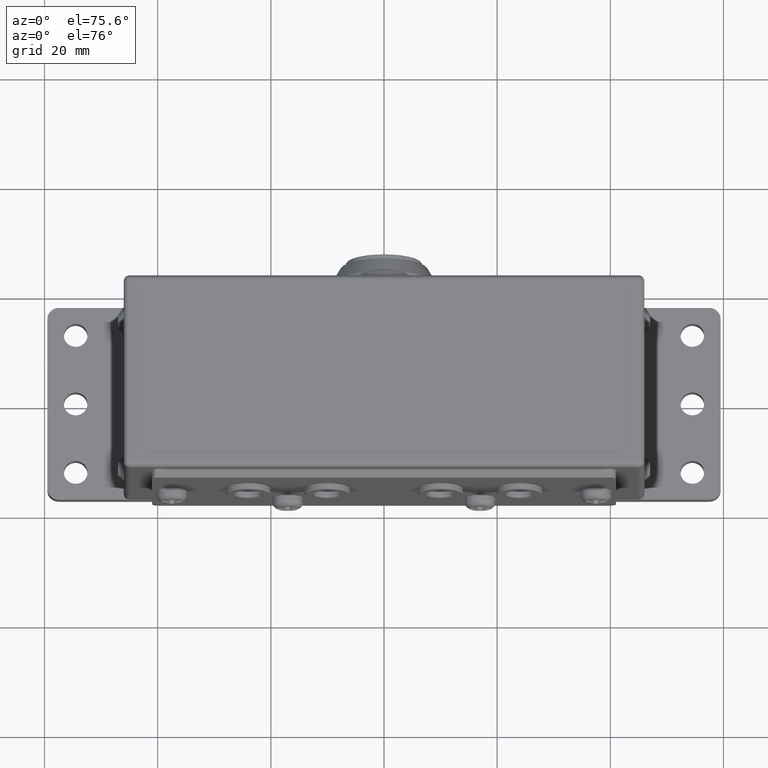
[diagram: clean part render]
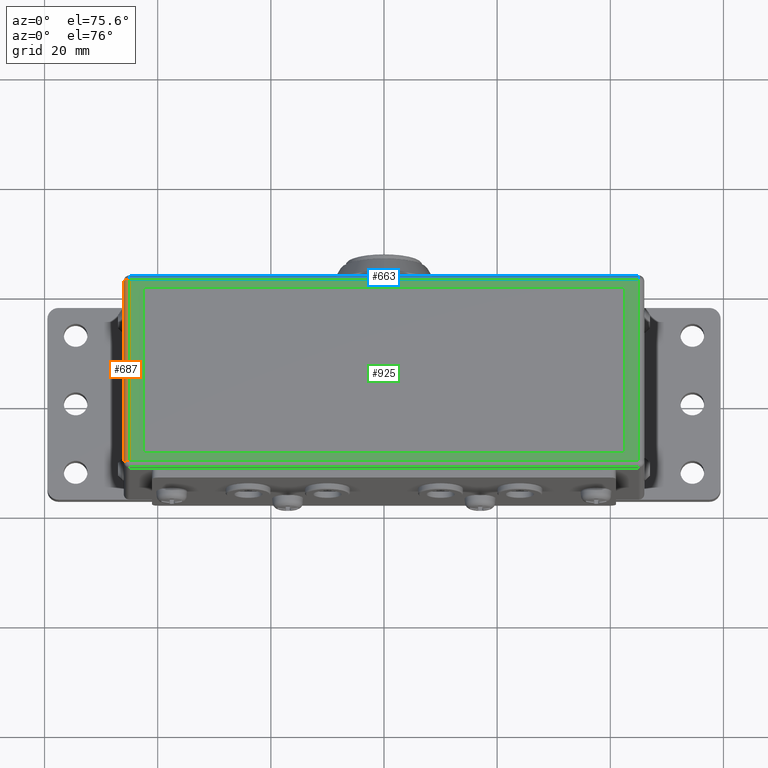
[diagram: same view with three faces highlighted in distinct colors, each labeled with its STEP entity id]
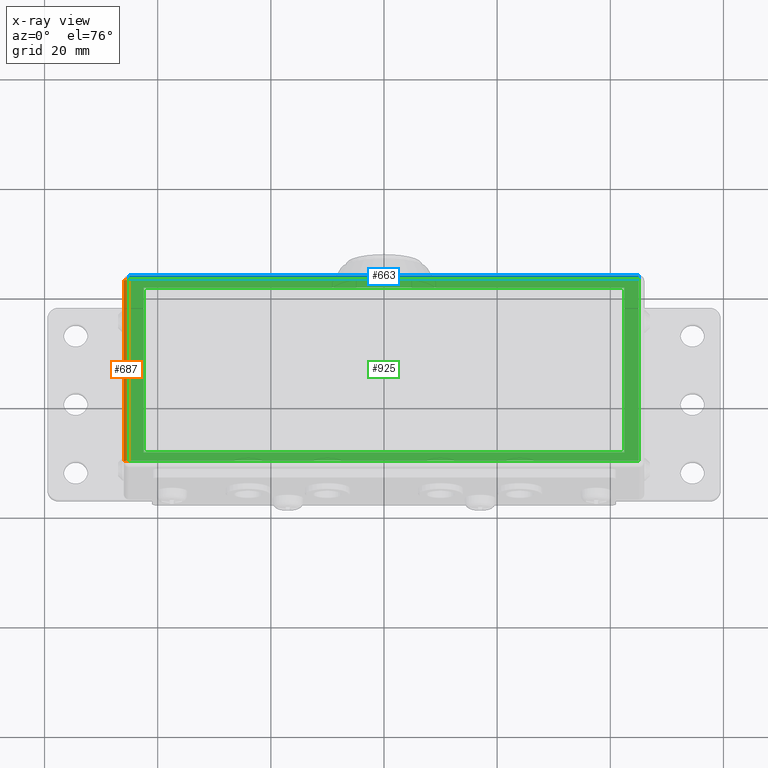
[diagram: x-ray of the same camera — body ghosted, the three highlighted faces saturated]
A machine part, auxiliary view with three faces highlighted in distinct colors.
The next image is the same camera in x-ray (body ghosted, the three faces saturated) — at least one of them is partly hidden behind the body in this view.
Their STEP definitions:

[orange] entity #687 — the highlighted cylindrical surface (edge-blend (fillet) strip) has radius 1 mm, axis along (0, -1, -0).
#687 = ADVANCED_FACE( '', ( #1588 ), #1589, .T. );
#1588 = FACE_OUTER_BOUND( '', #2709, .T. );
#1589 = CYLINDRICAL_SURFACE( '', #2710, 1.00000000000000 );
#2709 = EDGE_LOOP( '', ( #4641, #4642, #4643, #4644 ) );
#2710 = AXIS2_PLACEMENT_3D( '', #4645, #4646, #4647 );
#4641 = ORIENTED_EDGE( '', *, *, #6574, .F. );
#4642 = ORIENTED_EDGE( '', *, *, #6575, .T. );
#4643 = ORIENTED_EDGE( '', *, *, #6576, .F. );
#4644 = ORIENTED_EDGE( '', *, *, #6577, .T. );
#4645 = CARTESIAN_POINT( '', ( -45.0000000000001, -17.5000000000000, -1.00000000000000 ) );
#4646 = DIRECTION( '', ( 0.000000000000000, -1.00000000000000, -0.000000000000000 ) );
#4647 = DIRECTION( '', ( 0.000000000000000, -0.000000000000000, 1.00000000000000 ) );
#6574 = EDGE_CURVE( '', #7944, #7280, #7984, .F. );
#6575 = EDGE_CURVE( '', #7944, #7560, #7985, .F. );
#6576 = EDGE_CURVE( '', #7748, #7560, #7986, .T. );
#6577 = EDGE_CURVE( '', #7748, #7280, #7987, .T. );
#7280 = VERTEX_POINT( '', #8878 );
#7560 = VERTEX_POINT( '', #9241 );
#7748 = VERTEX_POINT( '', #9486 );
#7944 = VERTEX_POINT( '', #9759 );
#7984 = LINE( '', #9811, #9812 );
#7985 = CIRCLE( '', #9813, 1.00000000000000 );
#7986 = LINE( '', #9814, #9815 );
#7987 = CIRCLE( '', #9816, 1.00000000000000 );
#8878 = CARTESIAN_POINT( '', ( -45.0000000000001, -16.5000000000000, 0.000000000000000 ) );
#9241 = CARTESIAN_POINT( '', ( -46.0000000000001, 16.5000000000000, -1.00000000000000 ) );
#9486 = CARTESIAN_POINT( '', ( -46.0000000000001, -16.5000000000000, -1.00000000000000 ) );
#9759 = CARTESIAN_POINT( '', ( -45.0000000000001, 16.5000000000000, 0.000000000000000 ) );
#9811 = CARTESIAN_POINT( '', ( -45.0000000000001, 17.5000000000000, 0.000000000000000 ) );
#9812 = VECTOR( '', #11244, 1000.00000000000 );
#9813 = AXIS2_PLACEMENT_3D( '', #11245, #11246, #11247 );
#9814 = CARTESIAN_POINT( '', ( -46.0000000000001, -17.5000000000000, -1.00000000000000 ) );
#9815 = VECTOR( '', #11248, 1000.00000000000 );
#9816 = AXIS2_PLACEMENT_3D( '', #11249, #11250, #11251 );
#11244 = DIRECTION( '', ( 0.000000000000000, 1.00000000000000, 0.000000000000000 ) );
#11245 = CARTESIAN_POINT( '', ( -45.0000000000001, 16.5000000000000, -1.00000000000000 ) );
#11246 = DIRECTION( '', ( -0.000000000000000, 1.00000000000000, 0.000000000000000 ) );
#11247 = DIRECTION( '', ( 0.000000000000000, -0.000000000000000, 1.00000000000000 ) );
#11248 = DIRECTION( '', ( -0.000000000000000, 1.00000000000000, 0.000000000000000 ) );
#11249 = CARTESIAN_POINT( '', ( -45.0000000000001, -16.5000000000000, -1.00000000000000 ) );
#11250 = DIRECTION( '', ( -0.000000000000000, 1.00000000000000, 0.000000000000000 ) );
#11251 = DIRECTION( '', ( 0.000000000000000, -0.000000000000000, 1.00000000000000 ) );

[blue] entity #663 — the highlighted cylindrical surface (edge-blend (fillet) strip) has radius 1 mm, axis along (-1, -0, -0).
#663 = ADVANCED_FACE( '', ( #1549 ), #1550, .T. );
#1549 = FACE_OUTER_BOUND( '', #2670, .T. );
#1550 = CYLINDRICAL_SURFACE( '', #2671, 1.00000000000000 );
#2670 = EDGE_LOOP( '', ( #4551, #4552, #4553, #4554 ) );
#2671 = AXIS2_PLACEMENT_3D( '', #4555, #4556, #4557 );
#4551 = ORIENTED_EDGE( '', *, *, #6542, .F. );
#4552 = ORIENTED_EDGE( '', *, *, #6543, .T. );
#4553 = ORIENTED_EDGE( '', *, *, #6010, .F. );
#4554 = ORIENTED_EDGE( '', *, *, #6544, .T. );
#4555 = CARTESIAN_POINT( '', ( -46.0000000000001, 16.5000000000000, -1.00000000000000 ) );
#4556 = DIRECTION( '', ( -1.00000000000000, -0.000000000000000, -0.000000000000000 ) );
#4557 = DIRECTION( '', ( 0.000000000000000, 0.000000000000000, -1.00000000000000 ) );
#6010 = EDGE_CURVE( '', #7102, #7103, #7104, .T. );
#6542 = EDGE_CURVE( '', #7553, #7944, #7945, .F. );
#6543 = EDGE_CURVE( '', #7553, #7103, #7946, .F. );
#6544 = EDGE_CURVE( '', #7102, #7944, #7947, .T. );
#7102 = VERTEX_POINT( '', #8648 );
#7103 = VERTEX_POINT( '', #8649 );
#7104 = LINE( '', #8650, #8651 );
#7553 = VERTEX_POINT( '', #9233 );
#7944 = VERTEX_POINT( '', #9759 );
#7945 = LINE( '', #9760, #9761 );
#7946 = CIRCLE( '', #9762, 1.00000000000000 );
#7947 = CIRCLE( '', #9763, 1.00000000000000 );
#8648 = CARTESIAN_POINT( '', ( -45.0000000000001, 17.5000000000000, -1.00000000000000 ) );
#8649 = CARTESIAN_POINT( '', ( 44.9999999999999, 17.5000000000000, -1.00000000000000 ) );
#8650 = CARTESIAN_POINT( '', ( -46.0000000000001, 17.5000000000000, -1.00000000000000 ) );
#8651 = VECTOR( '', #10483, 1000.00000000000 );
#9233 = CARTESIAN_POINT( '', ( 44.9999999999999, 16.5000000000000, 0.000000000000000 ) );
#9759 = CARTESIAN_POINT( '', ( -45.0000000000001, 16.5000000000000, 0.000000000000000 ) );
#9760 = CARTESIAN_POINT( '', ( -46.0000000000001, 16.5000000000000, 0.000000000000000 ) );
#9761 = VECTOR( '', #11208, 1000.00000000000 );
#9762 = AXIS2_PLACEMENT_3D( '', #11209, #11210, #11211 );
#9763 = AXIS2_PLACEMENT_3D( '', #11212, #11213, #11214 );
#10483 = DIRECTION( '', ( 1.00000000000000, 0.000000000000000, 0.000000000000000 ) );
#11208 = DIRECTION( '', ( 1.00000000000000, 0.000000000000000, 0.000000000000000 ) );
#11209 = CARTESIAN_POINT( '', ( 44.9999999999999, 16.5000000000000, -1.00000000000000 ) );
#11210 = DIRECTION( '', ( 1.00000000000000, 0.000000000000000, 0.000000000000000 ) );
#11211 = DIRECTION( '', ( 0.000000000000000, 0.000000000000000, -1.00000000000000 ) );
#11212 = CARTESIAN_POINT( '', ( -45.0000000000001, 16.5000000000000, -1.00000000000000 ) );
#11213 = DIRECTION( '', ( 1.00000000000000, 0.000000000000000, 0.000000000000000 ) );
#11214 = DIRECTION( '', ( 0.000000000000000, 0.000000000000000, -1.00000000000000 ) );

[green] entity #925 — the highlighted planar face has unit normal (0, 0, -1).
#925 = ADVANCED_FACE( '', ( #2011, #2012 ), #2013, .F. );
#2011 = FACE_BOUND( '', #3132, .T. );
#2012 = FACE_OUTER_BOUND( '', #3133, .T. );
#2013 = PLANE( '', #3134 );
#3132 = EDGE_LOOP( '', ( #5614, #5615, #5616, #5617 ) );
#3133 = EDGE_LOOP( '', ( #5618, #5619, #5620, #5621 ) );
#3134 = AXIS2_PLACEMENT_3D( '', #5622, #5623, #5624 );
#5614 = ORIENTED_EDGE( '', *, *, #6721, .T. );
#5615 = ORIENTED_EDGE( '', *, *, #6579, .T. );
#5616 = ORIENTED_EDGE( '', *, *, #6167, .T. );
#5617 = ORIENTED_EDGE( '', *, *, #6810, .T. );
#5618 = ORIENTED_EDGE( '', *, *, #6282, .T. );
#5619 = ORIENTED_EDGE( '', *, *, #6542, .T. );
#5620 = ORIENTED_EDGE( '', *, *, #6574, .T. );
#5621 = ORIENTED_EDGE( '', *, *, #6114, .T. );
#5622 = CARTESIAN_POINT( '', ( -46.0000000000001, 17.5000000000000, 0.000000000000000 ) );
#5623 = DIRECTION( '', ( 0.000000000000000, 0.000000000000000, -1.00000000000000 ) );
#5624 = DIRECTION( '', ( 0.000000000000000, 1.00000000000000, 0.000000000000000 ) );
#6114 = EDGE_CURVE( '', #7280, #7281, #7282, .F. );
#6167 = EDGE_CURVE( '', #7370, #7371, #7372, .T. );
#6282 = EDGE_CURVE( '', #7281, #7553, #7555, .F. );
#6542 = EDGE_CURVE( '', #7553, #7944, #7945, .F. );
#6574 = EDGE_CURVE( '', #7944, #7280, #7984, .F. );
#6579 = EDGE_CURVE( '', #7989, #7370, #7990, .T. );
#6721 = EDGE_CURVE( '', #8181, #7989, #8182, .T. );
#6810 = EDGE_CURVE( '', #7371, #8181, #8292, .T. );
#7280 = VERTEX_POINT( '', #8878 );
#7281 = VERTEX_POINT( '', #8879 );
#7282 = LINE( '', #8880, #8881 );
#7370 = VERTEX_POINT( '', #8993 );
#7371 = VERTEX_POINT( '', #8994 );
#7372 = LINE( '', #8995, #8996 );
#7553 = VERTEX_POINT( '', #9233 );
#7555 = LINE( '', #9235, #9236 );
#7944 = VERTEX_POINT( '', #9759 );
#7945 = LINE( '', #9760, #9761 );
#7984 = LINE( '', #9811, #9812 );
#7989 = VERTEX_POINT( '', #9818 );
#7990 = LINE( '', #9819, #9820 );
#8181 = VERTEX_POINT( '', #10061 );
#8182 = LINE( '', #10062, #10063 );
#8292 = LINE( '', #10221, #10222 );
#8878 = CARTESIAN_POINT( '', ( -45.0000000000001, -16.5000000000000, 0.000000000000000 ) );
#8879 = CARTESIAN_POINT( '', ( 44.9999999999999, -16.5000000000000, 0.000000000000000 ) );
#8880 = CARTESIAN_POINT( '', ( -46.0000000000001, -16.5000000000000, 0.000000000000000 ) );
#8881 = VECTOR( '', #10637, 1000.00000000000 );
#8993 = CARTESIAN_POINT( '', ( -42.5000000000001, 15.0000000000000, 0.000000000000000 ) );
#8994 = CARTESIAN_POINT( '', ( 42.5000000000000, 15.0000000000000, 0.000000000000000 ) );
#8995 = CARTESIAN_POINT( '', ( -42.5000000000001, 15.0000000000000, 0.000000000000000 ) );
#8996 = VECTOR( '', #10707, 1000.00000000000 );
#9233 = CARTESIAN_POINT( '', ( 44.9999999999999, 16.5000000000000, 0.000000000000000 ) );
#9235 = CARTESIAN_POINT( '', ( 44.9999999999999, 17.5000000000000, 0.000000000000000 ) );
#9236 = VECTOR( '', #10861, 1000.00000000000 );
#9759 = CARTESIAN_POINT( '', ( -45.0000000000001, 16.5000000000000, 0.000000000000000 ) );
#9760 = CARTESIAN_POINT( '', ( -46.0000000000001, 16.5000000000000, 0.000000000000000 ) );
#9761 = VECTOR( '', #11208, 1000.00000000000 );
#9811 = CARTESIAN_POINT( '', ( -45.0000000000001, 17.5000000000000, 0.000000000000000 ) );
#9812 = VECTOR( '', #11244, 1000.00000000000 );
#9818 = CARTESIAN_POINT( '', ( -42.5000000000001, -15.0000000000000, 0.000000000000000 ) );
#9819 = CARTESIAN_POINT( '', ( -42.5000000000001, -15.0000000000000, 0.000000000000000 ) );
#9820 = VECTOR( '', #11252, 1000.00000000000 );
#10061 = CARTESIAN_POINT( '', ( 42.5000000000000, -15.0000000000000, 0.000000000000000 ) );
#10062 = CARTESIAN_POINT( '', ( 42.5000000000000, -15.0000000000000, 0.000000000000000 ) );
#10063 = VECTOR( '', #11416, 1000.00000000000 );
#10221 = CARTESIAN_POINT( '', ( 42.5000000000000, 15.0000000000000, 0.000000000000000 ) );
#10222 = VECTOR( '', #11498, 1000.00000000000 );
#10637 = DIRECTION( '', ( -1.00000000000000, 0.000000000000000, 0.000000000000000 ) );
#10707 = DIRECTION( '', ( 1.00000000000000, -0.000000000000000, 0.000000000000000 ) );
#10861 = DIRECTION( '', ( 0.000000000000000, -1.00000000000000, 0.000000000000000 ) );
#11208 = DIRECTION( '', ( 1.00000000000000, 0.000000000000000, 0.000000000000000 ) );
#11244 = DIRECTION( '', ( 0.000000000000000, 1.00000000000000, 0.000000000000000 ) );
#11252 = DIRECTION( '', ( -0.000000000000000, 1.00000000000000, -0.000000000000000 ) );
#11416 = DIRECTION( '', ( -1.00000000000000, 0.000000000000000, 0.000000000000000 ) );
#11498 = DIRECTION( '', ( 0.000000000000000, -1.00000000000000, 0.000000000000000 ) );